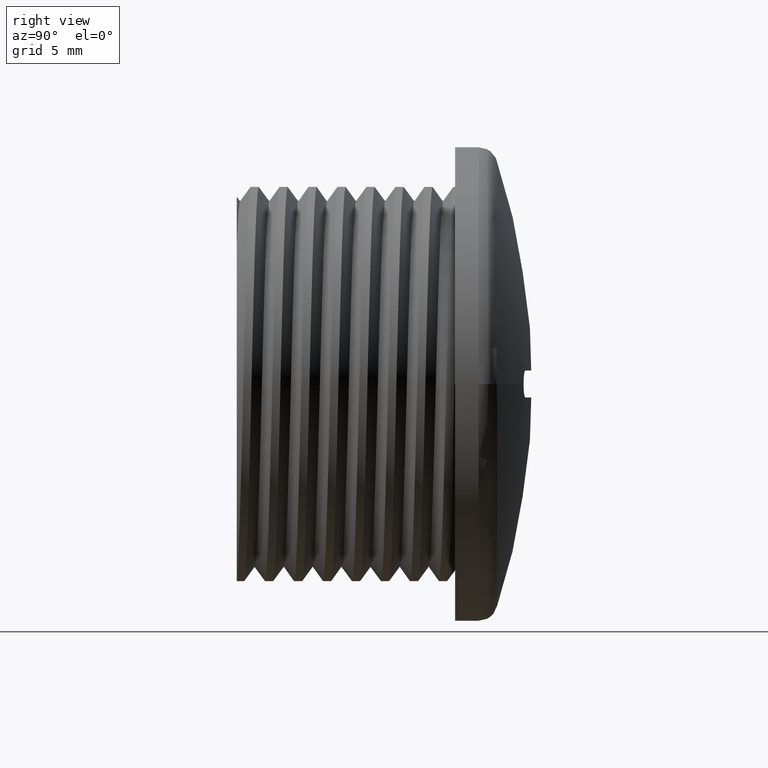
[diagram: clean part render]
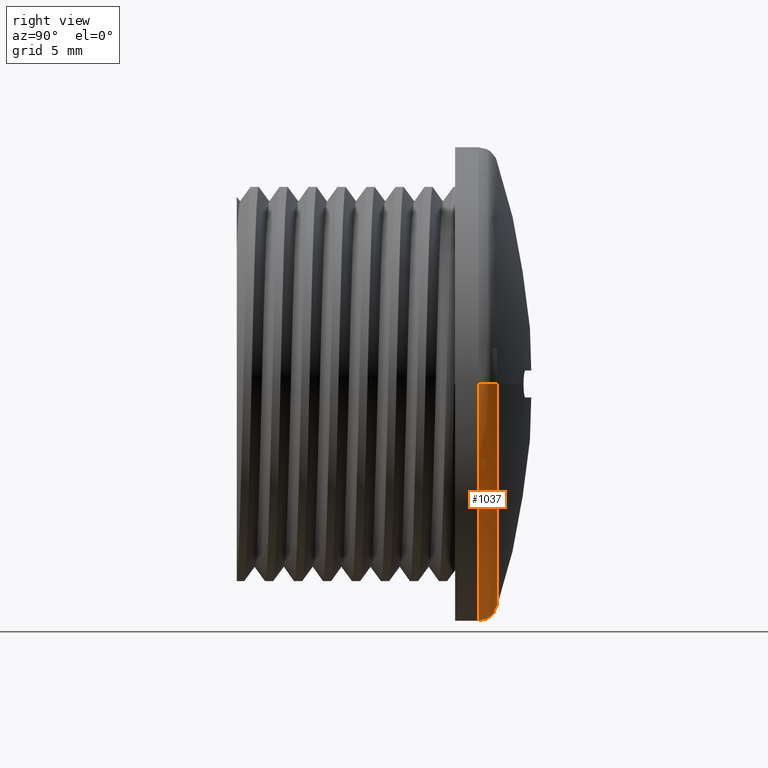
[diagram: same view with one face highlighted and labeled with its STEP entity id]
A machine part, right view. The second image highlights one B-rep face of the part: STEP entity #1037.
In plain terms, the highlighted toroidal blend (fillet) surface has major radius 11.25 mm and minor (blend) radius 1 mm.
Its self-contained STEP definition (entity closure, byte-faithful):
#404 = EDGE_LOOP ( 'NONE', ( #816, #810, #822, #855, #803 ) ) ;
#439 = VERTEX_POINT ( 'NONE', #520 ) ;
#445 = VERTEX_POINT ( 'NONE', #524 ) ;
#447 = VERTEX_POINT ( 'NONE', #506 ) ;
#490 = VERTEX_POINT ( 'NONE', #525 ) ;
#496 = VERTEX_POINT ( 'NONE', #527 ) ;
#506 = CARTESIAN_POINT ( 'NONE',  ( 12.24999999999999800, 12.56953596464697900, 0.0000000000000000000 ) ) ;
#520 = CARTESIAN_POINT ( 'NONE',  ( 11.48632900201851600, 13.54120905926517800, 0.0000000000000000000 ) ) ;
#524 = CARTESIAN_POINT ( 'NONE',  ( 0.0000000000000000000, 12.56953596464697900, -12.25000000000000000 ) ) ;
#525 = CARTESIAN_POINT ( 'NONE',  ( -12.24999999999999800, 12.56953596464697900, 1.500192328955507500E-015 ) ) ;
#527 = CARTESIAN_POINT ( 'NONE',  ( -11.48632900201851500, 13.54120905926517800, 0.0000000000000000000 ) ) ;
#803 = ORIENTED_EDGE ( 'NONE', *, *, #1012, .F. ) ;
#810 = ORIENTED_EDGE ( 'NONE', *, *, #1010, .T. ) ;
#816 = ORIENTED_EDGE ( 'NONE', *, *, #1003, .F. ) ;
#822 = ORIENTED_EDGE ( 'NONE', *, *, #999, .T. ) ;
#855 = ORIENTED_EDGE ( 'NONE', *, *, #988, .F. ) ;
#988 = EDGE_CURVE ( 'NONE', #445, #447, #2185, .T. ) ;
#999 = EDGE_CURVE ( 'NONE', #439, #447, #2211, .T. ) ;
#1003 = EDGE_CURVE ( 'NONE', #496, #490, #2203, .T. ) ;
#1010 = EDGE_CURVE ( 'NONE', #496, #439, #2275, .T. ) ;
#1012 = EDGE_CURVE ( 'NONE', #490, #445, #2249, .T. ) ;
#1037 = ADVANCED_FACE ( 'NONE', ( #2005 ), #2227, .T. ) ;
#2005 = FACE_OUTER_BOUND ( 'NONE', #404, .T. ) ;
#2006 = CARTESIAN_POINT ( 'NONE',  ( -7.500961644777537700E-016, 12.56953596464697900, 0.0000000000000000000 ) ) ;
#2015 = DIRECTION ( 'NONE',  ( -7.080503983578809200E-017, -1.000000000000000000, -0.0000000000000000000 ) ) ;
#2021 = DIRECTION ( 'NONE',  ( 1.000000000000000000, -7.080503983578809200E-017, 0.0000000000000000000 ) ) ;
#2185 = CIRCLE ( 'NONE', #2206, 12.25000000000000000 ) ;
#2189 = AXIS2_PLACEMENT_3D ( 'NONE', #2477, #2486, #2487 ) ;
#2203 = CIRCLE ( 'NONE', #2217, 0.9999999999999904500 ) ;
#2206 = AXIS2_PLACEMENT_3D ( 'NONE', #2354, #2357, #2394 ) ;
#2211 = CIRCLE ( 'NONE', #2189, 0.9999999999999904500 ) ;
#2217 = AXIS2_PLACEMENT_3D ( 'NONE', #2510, #2499, #2500 ) ;
#2227 = TOROIDAL_SURFACE ( 'NONE', #2276, 11.25000000000000700, 0.9999999999999909000 ) ;
#2240 = AXIS2_PLACEMENT_3D ( 'NONE', #2514, #2519, #2517 ) ;
#2249 = CIRCLE ( 'NONE', #2250, 12.25000000000000000 ) ;
#2250 = AXIS2_PLACEMENT_3D ( 'NONE', #2533, #2534, #2541 ) ;
#2275 = CIRCLE ( 'NONE', #2240, 11.48632900201851800 ) ;
#2276 = AXIS2_PLACEMENT_3D ( 'NONE', #2006, #2015, #2021 ) ;
#2354 = CARTESIAN_POINT ( 'NONE',  ( 0.0000000000000000000, 12.56953596464697900, 0.0000000000000000000 ) ) ;
#2357 = DIRECTION ( 'NONE',  ( -0.0000000000000000000, -1.000000000000000000, -0.0000000000000000000 ) ) ;
#2394 = DIRECTION ( 'NONE',  ( 0.0000000000000000000, 0.0000000000000000000, -1.000000000000000000 ) ) ;
#2477 = CARTESIAN_POINT ( 'NONE',  ( 11.25000000000000700, 12.56953596464697900, 0.0000000000000000000 ) ) ;
#2486 = DIRECTION ( 'NONE',  ( 0.0000000000000000000, 0.0000000000000000000, -1.000000000000000000 ) ) ;
#2487 = DIRECTION ( 'NONE',  ( -1.000000000000000000, 0.0000000000000000000, 0.0000000000000000000 ) ) ;
#2499 = DIRECTION ( 'NONE',  ( 1.224646799147353200E-016, -8.671116539839871700E-033, 1.000000000000000000 ) ) ;
#2500 = DIRECTION ( 'NONE',  ( 1.000000000000000000, 0.0000000000000000000, -1.224646799147354400E-016 ) ) ;
#2510 = CARTESIAN_POINT ( 'NONE',  ( -11.25000000000000700, 12.56953596464697900, 1.377727649040773200E-015 ) ) ;
#2514 = CARTESIAN_POINT ( 'NONE',  ( -6.812968123059483300E-016, 13.54120905926518300, 0.0000000000000000000 ) ) ;
#2517 = DIRECTION ( 'NONE',  ( 1.000000000000000000, 0.0000000000000000000, 0.0000000000000000000 ) ) ;
#2519 = DIRECTION ( 'NONE',  ( -7.080503983578809200E-017, -1.000000000000000000, -0.0000000000000000000 ) ) ;
#2533 = CARTESIAN_POINT ( 'NONE',  ( 0.0000000000000000000, 12.56953596464697900, 0.0000000000000000000 ) ) ;
#2534 = DIRECTION ( 'NONE',  ( -0.0000000000000000000, -1.000000000000000000, -0.0000000000000000000 ) ) ;
#2541 = DIRECTION ( 'NONE',  ( 0.0000000000000000000, 0.0000000000000000000, -1.000000000000000000 ) ) ;